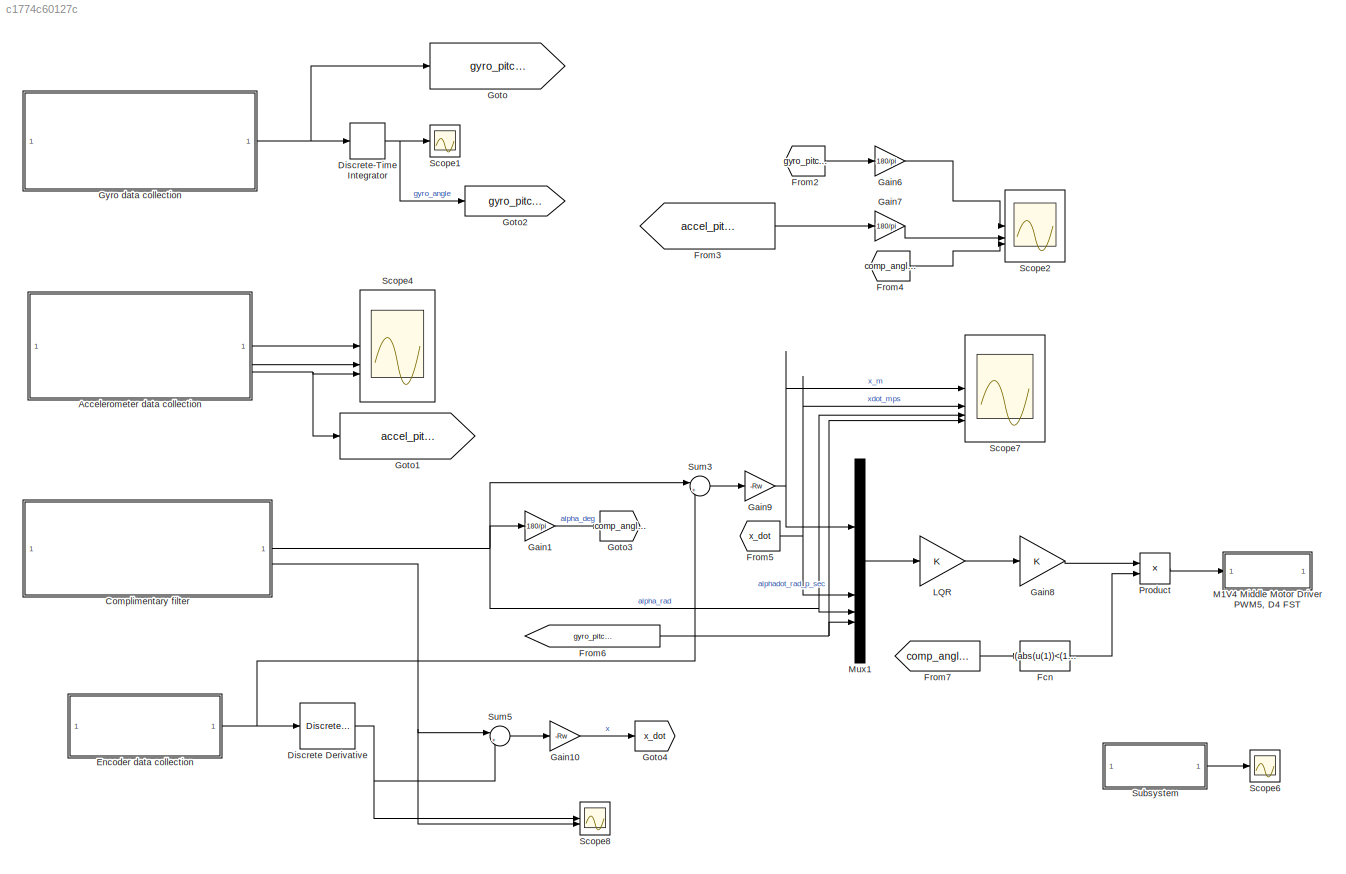
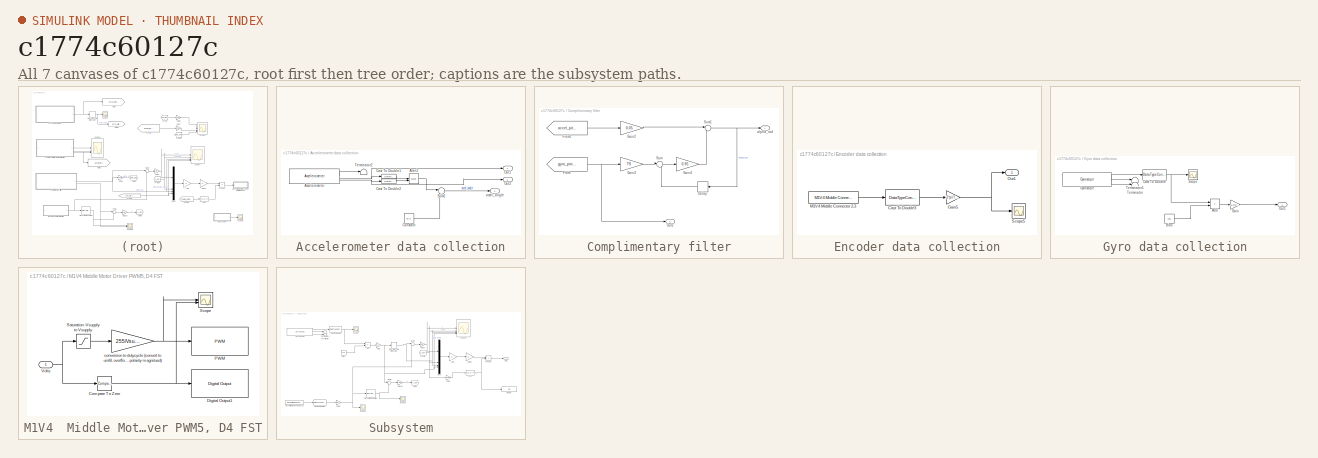
[diagram: thumbnail index - all 7 canvases of the model, root first then tree order]
MODEL slx_c1774c60127c
KIND model
CONFIG AbsTol = auto
CONFIG EnableMultiTasking = off
CONFIG FixedStep = 0.007
CONFIG MaxStep = auto
CONFIG MinStep = auto
CONFIG RelTol = 1e-3
CONFIG SampleTimeConstraint = Unconstrained
CONFIG SolverName = FixedStepAuto
CONFIG StartTime = 0.0
CONFIG StopTime = 0.007*2500
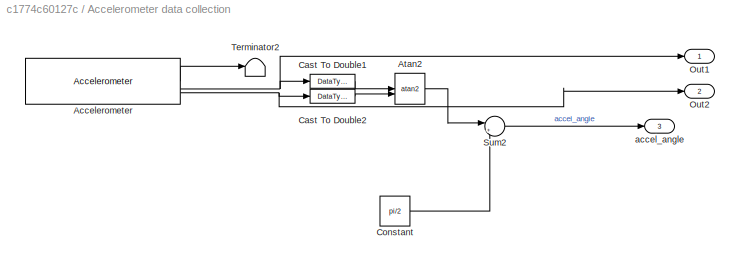
BLOCK [SubSystem] Accelerometer data collection
BLOCK [Reference] Accelerometer data collection/Accelerometer  REF=RASPlib/Accelerometer
  SourceBlock = RASPlib/Accelerometer
  SourceProductName = Rensselaer Arduino Support Package
  SourceType = soMPU6050Accel
BLOCK [Trigonometry] Accelerometer data collection/Atan2
  Operator = atan2
BLOCK [DataTypeConversion] Accelerometer data collection/Cast To Double1
  OutDataTypeStr = double
  RndMeth = Floor
  SaturateOnIntegerOverflow = off
BLOCK [DataTypeConversion] Accelerometer data collection/Cast To Double2
  OutDataTypeStr = double
  RndMeth = Floor
  SaturateOnIntegerOverflow = off
BLOCK [Constant] Accelerometer data collection/Constant
  Value = pi/2
BLOCK [Outport] Accelerometer data collection/Out1
BLOCK [Outport] Accelerometer data collection/Out2
  Port = 2
BLOCK [Sum] Accelerometer data collection/Sum2
  Inputs = |++
BLOCK [Terminator] Accelerometer data collection/Terminator2
BLOCK [Outport] Accelerometer data collection/accel_angle
  Port = 3
BLOCK [SubSystem] Complimentary filter
BLOCK [Delay] Complimentary filter/Delay
  DelayLength = 1
  InputPortMap = u0
  NameLocation = top
  SampleTime = 0.007
BLOCK [From] Complimentary filter/From
  GotoTag = gyro_pitch_rate_radpsec
BLOCK [From] Complimentary filter/From1
  GotoTag = accel_pitch_rad
BLOCK [Gain] Complimentary filter/Gain2
  Gain = 0.05
BLOCK [Gain] Complimentary filter/Gain3
  Gain = TS
BLOCK [Gain] Complimentary filter/Gain4
  Gain = 0.95
BLOCK [Outport] Complimentary filter/Out2
  Port = 2
BLOCK [Sum] Complimentary filter/Sum
  Inputs = |++
BLOCK [Sum] Complimentary filter/Sum1
  Inputs = |++
  NameLocation = top
BLOCK [Outport] Complimentary filter/alpha_rad
BLOCK [Reference] Discrete Derivative  REF=simulink/Discrete/Discrete Derivative
  SourceBlock = simulink/Discrete/Discrete Derivative
  SourceType = Discrete Derivative
BLOCK [DiscreteIntegrator] Discrete-Time Integrator
  ICPrevOutput = DiscIntNeverNeededParam
  ICPrevScaledInput = DiscIntNeverNeededParam
  InitialConditionSetting = Auto
  SampleTime = -1
BLOCK [SubSystem] Encoder data collection
BLOCK [DataTypeConversion] Encoder data collection/Cast To Double3
  OutDataTypeStr = double
  RndMeth = Floor
  SaturateOnIntegerOverflow = off
BLOCK [Gain] Encoder data collection/Gain5
  Gain = -2*pi/720
BLOCK [Reference] Encoder data collection/M1V4 Middle Connector 2,3  REF=MinSegLibrary_M1V4/M1V4 Middle Connector 2,3
  SourceBlock = MinSegLibrary_M1V4/M1V4 Middle Connector 2,3
  SourceProductName = Rensselaer Arduino Support Package
  SourceType = Encoder_arduino
BLOCK [Outport] Encoder data collection/Out1
BLOCK [Scope] Encoder data collection/Scope5
  Floating = off
  NumInputPorts = 1
  ScopeSpecificationString = Simulink.scopes.TimeScopeBlockCfg('CurrentConfiguration', extmgr.ConfigurationSet(extmgr.Configuration('Core','General UI',true),extmgr.Configuration('Core','Source UI',true),extmgr.Configuration('Sources','WiredSimulink',true,'DataLoggingVariableName','ScopeData1'),extmgr.Configuration('Visuals','Time Domain',true,'SerializedDisplays',{struct('MinYLimReal','-3.23977','MaxYLimReal','2.97797','YLab...<+1393ch>
BLOCK [Fcn] Fcn
  Expr = (abs(u(1))<(15))
BLOCK [From] From2
  GotoTag = gyro_pitch_rad
BLOCK [From] From3
  GotoTag = accel_pitch_rad
BLOCK [From] From4
  GotoTag = comp_angle_rad
BLOCK [From] From5
  GotoTag = x_dot
BLOCK [From] From6
  GotoTag = gyro_pitch_rate_radpsec
BLOCK [From] From7
  GotoTag = comp_angle_rad
BLOCK [Gain] Gain1
  Gain = 180/pi
BLOCK [Gain] Gain10
  Gain = -Rw
BLOCK [Gain] Gain6
  Gain = 180/pi
BLOCK [Gain] Gain7
  Gain = 180/pi
BLOCK [Gain] Gain8
BLOCK [Gain] Gain9
  Gain = -Rw
BLOCK [Goto] Goto
  GotoTag = gyro_pitch_rate_radpsec
BLOCK [Goto] Goto1
  GotoTag = accel_pitch_rad
BLOCK [Goto] Goto2
  GotoTag = gyro_pitch_rad
BLOCK [Goto] Goto3
  GotoTag = comp_angle_rad
BLOCK [Goto] Goto4
  GotoTag = x_dot
BLOCK [SubSystem] Gyro data collection
BLOCK [Sum] Gyro data collection/Add
  IconShape = rectangular
  Inputs = +-
BLOCK [Constant] Gyro data collection/Bias
  Value = 248
BLOCK [DataTypeConversion] Gyro data collection/Cast To Double
  OutDataTypeStr = double
  RndMeth = Floor
  SaturateOnIntegerOverflow = off
BLOCK [Gain] Gyro data collection/Gain
  Gain = -1/131*pi/180
BLOCK [Reference] Gyro data collection/Gyroscope  REF=RASPlib/Gyroscope
  SourceBlock = RASPlib/Gyroscope
  SourceProductName = Rensselaer Arduino Support Package
  SourceType = soMPU6050Gyro
BLOCK [Outport] Gyro data collection/Out1
BLOCK [Scope] Gyro data collection/Scope
  Floating = off
  NumInputPorts = 1
  ScopeSpecificationString = Simulink.scopes.TimeScopeBlockCfg('CurrentConfiguration', extmgr.ConfigurationSet(extmgr.Configuration('Core','General UI',true),extmgr.Configuration('Core','Source UI',true),extmgr.Configuration('Sources','WiredSimulink',true),extmgr.Configuration('Visuals','Time Domain',true,'SerializedDisplays',{struct('MinYLimReal','-25270.625','MaxYLimReal','16925.625','YLabelReal','','MinYLimMag','   0.00000...<+1381ch>
BLOCK [Terminator] Gyro data collection/Terminator
BLOCK [Terminator] Gyro data collection/Terminator1
BLOCK [Gain] LQR
  Gain = K
  Multiplication = Matrix(K*u)
BLOCK [SubSystem] M1V4  Middle Motor Driver PWM5, D4 FST
  AncestorBlock = MinSegLibrary_M1V4/M1V4  Middle Motor Driver\nPWM5, D4 FST
  LibrarySourceBlock = MinSegLibrary_M1V4/M1V4  Middle Motor Driver\nPWM5, D4 FST
BLOCK [Reference] M1V4  Middle Motor Driver PWM5, D4 FST/Compare To Zero  REF=simulink/Logic and Bit
Operations/Compare
To Zero
  SourceBlock = simulink/Logic and Bit\nOperations/Compare\nTo Zero
  SourceType = Compare To Zero
BLOCK [Reference] M1V4  Middle Motor Driver PWM5, D4 FST/Digital Output1  REF=arduinolib/Digital Output
  SourceBlock = arduinolib/Digital Output
  SourceType = Arduino Digital Output
BLOCK [Reference] M1V4  Middle Motor Driver PWM5, D4 FST/PWM  REF=arduinolib/PWM
  SourceBlock = arduinolib/PWM
  SourceType = Arduino PWM
BLOCK [Saturate] M1V4  Middle Motor Driver PWM5, D4 FST/Saturation -Vsupply to Vsupply
  LowerLimit = -Vsupply
  OutDataTypeStr = single
  UpperLimit = Vsupply
BLOCK [Scope] M1V4  Middle Motor Driver PWM5, D4 FST/Scope
  Floating = off
  NumInputPorts = 2
  ScopeSpecificationString = Simulink.scopes.TimeScopeBlockCfg('CurrentConfiguration', extmgr.ConfigurationSet(extmgr.Configuration('Core','General UI',true),extmgr.Configuration('Core','Source UI',true),extmgr.Configuration('Sources','WiredSimulink',true,'DataLoggingVariableName','ScopeData5'),extmgr.Configuration('Visuals','Time Domain',true,'SerializedDisplays',{struct('MinYLimReal','37.875','MaxYLimReal','219.125','YLabel...<+2176ch>
BLOCK [Inport] M1V4  Middle Motor Driver PWM5, D4 FST/Volts
BLOCK [Gain] M1V4  Middle Motor Driver PWM5, D4 FST/conversion to dutycycle (convert to uint8, overflow will provide reverse polairty magnitued)
  Gain = 255/Vsupply
  OutDataTypeStr = uint8
BLOCK [Mux] Mux1
  DisplayOption = bar
BLOCK [Product] Product
BLOCK [Scope] Scope1
  Floating = off
  NumInputPorts = 1
  ScopeSpecificationString = Simulink.scopes.TimeScopeBlockCfg('CurrentConfiguration', extmgr.ConfigurationSet(extmgr.Configuration('Core','General UI',true),extmgr.Configuration('Core','Source UI',true),extmgr.Configuration('Sources','WiredSimulink',true,'DataLoggingVariableName','ScopeData1'),extmgr.Configuration('Visuals','Time Domain',true,'SerializedDisplays',{struct('MinYLimReal','-0.36227','MaxYLimReal','0.53886','YLab...<+1398ch>
BLOCK [Scope] Scope2
  Floating = off
  NumInputPorts = 3
  ScopeSpecificationString = Simulink.scopes.TimeScopeBlockCfg('CurrentConfiguration', extmgr.ConfigurationSet(extmgr.Configuration('Core','General UI',true),extmgr.Configuration('Core','Source UI',true),extmgr.Configuration('Sources','WiredSimulink',true,'DataLoggingVariableName','ScopeData2'),extmgr.Configuration('Visuals','Time Domain',true,'SerializedDisplays',{struct('MinYLimReal','-20.75633','MaxYLimReal','30.87422','YL...<+2897ch>
BLOCK [Scope] Scope4
  Floating = off
  NumInputPorts = 3
  ScopeSpecificationString = Simulink.scopes.TimeScopeBlockCfg('CurrentConfiguration', extmgr.ConfigurationSet(extmgr.Configuration('Core','General UI',true),extmgr.Configuration('Core','Source UI',true),extmgr.Configuration('Sources','WiredSimulink',true,'DataLoggingVariableName','ScopeData4'),extmgr.Configuration('Visuals','Time Domain',true,'SerializedDisplays',{struct('MinYLimReal','-25334.00000','MaxYLimReal','-3434.0000...<+2784ch>
BLOCK [Scope] Scope6
  Commented = on
  Floating = off
  NumInputPorts = 1
  ScopeSpecificationString = Simulink.scopes.TimeScopeBlockCfg('CurrentConfiguration', extmgr.ConfigurationSet(extmgr.Configuration('Core','General UI',true),extmgr.Configuration('Core','Source UI',true),extmgr.Configuration('Sources','WiredSimulink',true,'DataLoggingVariableName','ScopeData2'),extmgr.Configuration('Visuals','Time Domain',true,'SerializedDisplays',{struct('MinYLimReal','-62.73621','MaxYLimReal','58.99317','YL...<+1405ch>
BLOCK [Scope] Scope7
  Floating = off
  NumInputPorts = 4
  ScopeSpecificationString = Simulink.scopes.TimeScopeBlockCfg('CurrentConfiguration', extmgr.ConfigurationSet(extmgr.Configuration('Core','General UI',true),extmgr.Configuration('Core','Source UI',true),extmgr.Configuration('Sources','WiredSimulink',true,'DataLoggingVariableName','ScopeData3'),extmgr.Configuration('Visuals','Time Domain',true,'SerializedDisplays',{struct('MinYLimReal','-0.06083','MaxYLimReal','0.06698','YLab...<+3450ch>
BLOCK [Scope] Scope8
  Floating = off
  NumInputPorts = 2
  ScopeSpecificationString = Simulink.scopes.TimeScopeBlockCfg('CurrentConfiguration', extmgr.ConfigurationSet(extmgr.Configuration('Core','General UI',true),extmgr.Configuration('Core','Source UI',true),extmgr.Configuration('Sources','WiredSimulink',true,'DataLoggingVariableName','ScopeData4'),extmgr.Configuration('Visuals','Time Domain',true,'SerializedDisplays',{struct('MinYLimReal','-9.35001','MaxYLimReal','9.35','YLabelR...<+2060ch>
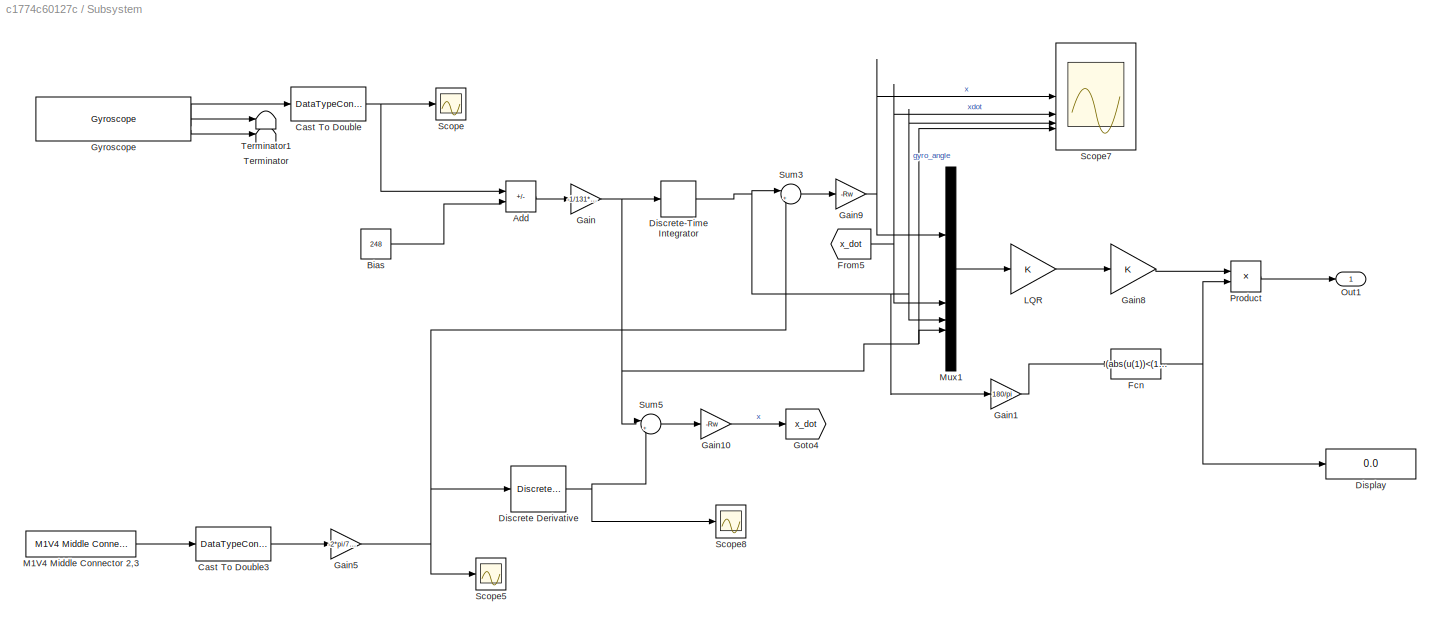
BLOCK [SubSystem] Subsystem
  Commented = on
BLOCK [Sum] Subsystem/Add
  IconShape = rectangular
  Inputs = +-
BLOCK [Constant] Subsystem/Bias
  Value = 248
BLOCK [DataTypeConversion] Subsystem/Cast To Double
  OutDataTypeStr = double
  RndMeth = Floor
  SaturateOnIntegerOverflow = off
BLOCK [DataTypeConversion] Subsystem/Cast To Double3
  OutDataTypeStr = double
  RndMeth = Floor
  SaturateOnIntegerOverflow = off
BLOCK [Reference] Subsystem/Discrete Derivative  REF=simulink/Discrete/Discrete Derivative
  SourceBlock = simulink/Discrete/Discrete Derivative
  SourceType = Discrete Derivative
BLOCK [DiscreteIntegrator] Subsystem/Discrete-Time Integrator
  ICPrevOutput = DiscIntNeverNeededParam
  ICPrevScaledInput = DiscIntNeverNeededParam
  InitialConditionSetting = Auto
  SampleTime = -1
BLOCK [Display] Subsystem/Display
  Decimation = 1
BLOCK [Fcn] Subsystem/Fcn
  Expr = (abs(u(1))<(15))
BLOCK [From] Subsystem/From5
  GotoTag = x_dot
BLOCK [Gain] Subsystem/Gain
  Gain = -1/131*pi/180
BLOCK [Gain] Subsystem/Gain1
  Gain = 180/pi
BLOCK [Gain] Subsystem/Gain10
  Gain = -Rw
BLOCK [Gain] Subsystem/Gain5
  Gain = -2*pi/720
BLOCK [Gain] Subsystem/Gain8
BLOCK [Gain] Subsystem/Gain9
  Gain = -Rw
BLOCK [Goto] Subsystem/Goto4
  GotoTag = x_dot
BLOCK [Reference] Subsystem/Gyroscope  REF=RASPlib/Gyroscope
  SourceBlock = RASPlib/Gyroscope
  SourceProductName = Rensselaer Arduino Support Package
  SourceType = soMPU6050Gyro
BLOCK [Gain] Subsystem/LQR
  Gain = K
  Multiplication = Matrix(K*u)
BLOCK [Reference] Subsystem/M1V4 Middle Connector 2,3  REF=MinSegLibrary_M1V4/M1V4 Middle Connector 2,3
  SourceBlock = MinSegLibrary_M1V4/M1V4 Middle Connector 2,3
  SourceProductName = Rensselaer Arduino Support Package
  SourceType = Encoder_arduino
BLOCK [Mux] Subsystem/Mux1
  DisplayOption = bar
BLOCK [Outport] Subsystem/Out1
BLOCK [Product] Subsystem/Product
BLOCK [Scope] Subsystem/Scope
  Floating = off
  NumInputPorts = 1
  ScopeSpecificationString = Simulink.scopes.TimeScopeBlockCfg('CurrentConfiguration', extmgr.ConfigurationSet(extmgr.Configuration('Core','General UI',true),extmgr.Configuration('Core','Source UI',true),extmgr.Configuration('Sources','WiredSimulink',true,'DataLoggingVariableName','ScopeData6'),extmgr.Configuration('Visuals','Time Domain',true,'SerializedDisplays',{struct('MinYLimReal','-14211.125','MaxYLimReal','13640.125','...<+1420ch>
BLOCK [Scope] Subsystem/Scope5
  Floating = off
  NumInputPorts = 1
  ScopeSpecificationString = Simulink.scopes.TimeScopeBlockCfg('CurrentConfiguration', extmgr.ConfigurationSet(extmgr.Configuration('Core','General UI',true),extmgr.Configuration('Core','Source UI',true),extmgr.Configuration('Sources','WiredSimulink',true,'DataLoggingVariableName','ScopeData11'),extmgr.Configuration('Visuals','Time Domain',true,'SerializedDisplays',{struct('MinYLimReal','-2.64199','MaxYLimReal','1.35045','YLa...<+1394ch>
BLOCK [Scope] Subsystem/Scope7
  Floating = off
  NumInputPorts = 4
  ScopeSpecificationString = Simulink.scopes.TimeScopeBlockCfg('CurrentConfiguration', extmgr.ConfigurationSet(extmgr.Configuration('Core','General UI',true),extmgr.Configuration('Core','Source UI',true),extmgr.Configuration('Sources','WiredSimulink',true,'DataLoggingVariableName','ScopeData13'),extmgr.Configuration('Visuals','Time Domain',true,'SerializedDisplays',{struct('MinYLimReal','-0.00509','MaxYLimReal','0.04583','YLa...<+3439ch>
BLOCK [Scope] Subsystem/Scope8
  Floating = off
  NumInputPorts = 2
  ScopeSpecificationString = Simulink.scopes.TimeScopeBlockCfg('CurrentConfiguration', extmgr.ConfigurationSet(extmgr.Configuration('Core','General UI',true),extmgr.Configuration('Core','Source UI',true),extmgr.Configuration('Sources','WiredSimulink',true,'DataLoggingVariableName','ScopeData14'),extmgr.Configuration('Visuals','Time Domain',true,'SerializedDisplays',{struct('MinYLimReal','-7.99943','MaxYLimReal','7.99943','YLa...<+2069ch>
BLOCK [Sum] Subsystem/Sum3
  Inputs = |++
BLOCK [Sum] Subsystem/Sum5
  Inputs = |++
BLOCK [Terminator] Subsystem/Terminator
BLOCK [Terminator] Subsystem/Terminator1
BLOCK [Sum] Sum3
  Inputs = |++
BLOCK [Sum] Sum5
  Inputs = |++
LINE Accelerometer data collection/Accelerometer:1 -> Accelerometer data collection/Terminator2:1
NET Accelerometer data collection/Accelerometer:2 -> Accelerometer data collection/Cast To Double1:1, Accelerometer data collection/Out1:1
NET Accelerometer data collection/Accelerometer:3 -> Accelerometer data collection/Cast To Double2:1, Accelerometer data collection/Out2:1
LINE Accelerometer data collection/Atan2:1 -> Accelerometer data collection/Sum2:1
LINE Accelerometer data collection/Cast To Double1:1 -> Accelerometer data collection/Atan2:1
LINE Accelerometer data collection/Cast To Double2:1 -> Accelerometer data collection/Atan2:2
LINE Accelerometer data collection/Constant:1 -> Accelerometer data collection/Sum2:2
LINE Accelerometer data collection/Sum2:1 -> Accelerometer data collection/accel_angle:1
LINE Accelerometer data collection:1 -> Scope4:1
LINE Accelerometer data collection:2 -> Scope4:2
NET Accelerometer data collection:3 -> Goto1:1, Scope4:3
LINE Complimentary filter/Delay:1 -> Complimentary filter/Sum:2
LINE Complimentary filter/From1:1 -> Complimentary filter/Gain2:1
NET Complimentary filter/From:1 -> Complimentary filter/Gain3:1, Complimentary filter/Out2:1
LINE Complimentary filter/Gain2:1 -> Complimentary filter/Sum1:1
LINE Complimentary filter/Gain3:1 -> Complimentary filter/Sum:1
LINE Complimentary filter/Gain4:1 -> Complimentary filter/Sum1:2
NET Complimentary filter/Sum1:1 -> Complimentary filter/Delay:1, Complimentary filter/alpha_rad:1
LINE Complimentary filter/Sum:1 -> Complimentary filter/Gain4:1
NET Complimentary filter:1 -> Gain1:1, Mux1:3, Scope7:3, Sum3:1
NET Complimentary filter:2 -> Scope8:2, Sum5:1
NET Discrete Derivative:1 -> Scope8:1, Sum5:2
NET Discrete-Time Integrator:1 -> Goto2:1, Scope1:1
LINE Encoder data collection/Cast To Double3:1 -> Encoder data collection/Gain5:1
NET Encoder data collection/Gain5:1 -> Encoder data collection/Out1:1, Encoder data collection/Scope5:1
LINE Encoder data collection/M1V4 Middle Connector 2,3:1 -> Encoder data collection/Cast To Double3:1
NET Encoder data collection:1 -> Discrete Derivative:1, Sum3:2
LINE Fcn:1 -> Product:2
LINE From2:1 -> Gain6:1
LINE From3:1 -> Gain7:1
LINE From4:1 -> Scope2:3
NET From5:1 -> Mux1:2, Scope7:2
NET From6:1 -> Mux1:4, Scope7:4
LINE From7:1 -> Fcn:1
LINE Gain10:1 -> Goto4:1
LINE Gain1:1 -> Goto3:1
LINE Gain6:1 -> Scope2:1
LINE Gain7:1 -> Scope2:2
LINE Gain8:1 -> Product:1
NET Gain9:1 -> Mux1:1, Scope7:1
LINE Gyro data collection/Add:1 -> Gyro data collection/Gain:1
LINE Gyro data collection/Bias:1 -> Gyro data collection/Add:2
NET Gyro data collection/Cast To Double:1 -> Gyro data collection/Add:1, Gyro data collection/Scope:1
LINE Gyro data collection/Gain:1 -> Gyro data collection/Out1:1
LINE Gyro data collection/Gyroscope:1 -> Gyro data collection/Cast To Double:1
LINE Gyro data collection/Gyroscope:2 -> Gyro data collection/Terminator1:1
LINE Gyro data collection/Gyroscope:3 -> Gyro data collection/Terminator:1
NET Gyro data collection:1 -> Discrete-Time Integrator:1, Goto:1
LINE LQR:1 -> Gain8:1
LINE Mux1:1 -> LQR:1
LINE Product:1 -> M1V4  Middle Motor Driver PWM5, D4 FST:1
LINE Subsystem/Add:1 -> Subsystem/Gain:1
LINE Subsystem/Bias:1 -> Subsystem/Add:2
LINE Subsystem/Cast To Double3:1 -> Subsystem/Gain5:1
NET Subsystem/Cast To Double:1 -> Subsystem/Add:1, Subsystem/Scope:1
NET Subsystem/Discrete Derivative:1 -> Subsystem/Scope8:1, Subsystem/Sum5:2
NET Subsystem/Discrete-Time Integrator:1 -> Subsystem/Gain1:1, Subsystem/Mux1:3, Subsystem/Scope7:3, Subsystem/Sum3:1
NET Subsystem/Fcn:1 -> Subsystem/Display:1, Subsystem/Product:2
NET Subsystem/From5:1 -> Subsystem/Mux1:2, Subsystem/Scope7:2
LINE Subsystem/Gain10:1 -> Subsystem/Goto4:1
LINE Subsystem/Gain1:1 -> Subsystem/Fcn:1
NET Subsystem/Gain5:1 -> Subsystem/Discrete Derivative:1, Subsystem/Scope5:1, Subsystem/Sum3:2
LINE Subsystem/Gain8:1 -> Subsystem/Product:1
NET Subsystem/Gain9:1 -> Subsystem/Mux1:1, Subsystem/Scope7:1
NET Subsystem/Gain:1 -> Subsystem/Discrete-Time Integrator:1, Subsystem/Mux1:4, Subsystem/Scope7:4, Subsystem/Sum5:1
LINE Subsystem/Gyroscope:1 -> Subsystem/Cast To Double:1
LINE Subsystem/Gyroscope:2 -> Subsystem/Terminator1:1
LINE Subsystem/Gyroscope:3 -> Subsystem/Terminator:1
LINE Subsystem/LQR:1 -> Subsystem/Gain8:1
LINE Subsystem/M1V4 Middle Connector 2,3:1 -> Subsystem/Cast To Double3:1
LINE Subsystem/Mux1:1 -> Subsystem/LQR:1
LINE Subsystem/Product:1 -> Subsystem/Out1:1
LINE Subsystem/Sum3:1 -> Subsystem/Gain9:1
LINE Subsystem/Sum5:1 -> Subsystem/Gain10:1
LINE Subsystem:1 -> Scope6:1
LINE Sum3:1 -> Gain9:1
LINE Sum5:1 -> Gain10:1
note: NET lines group one-source signal fan-out (src -> all destinations, sorted); 1:1 wires keep LINE
